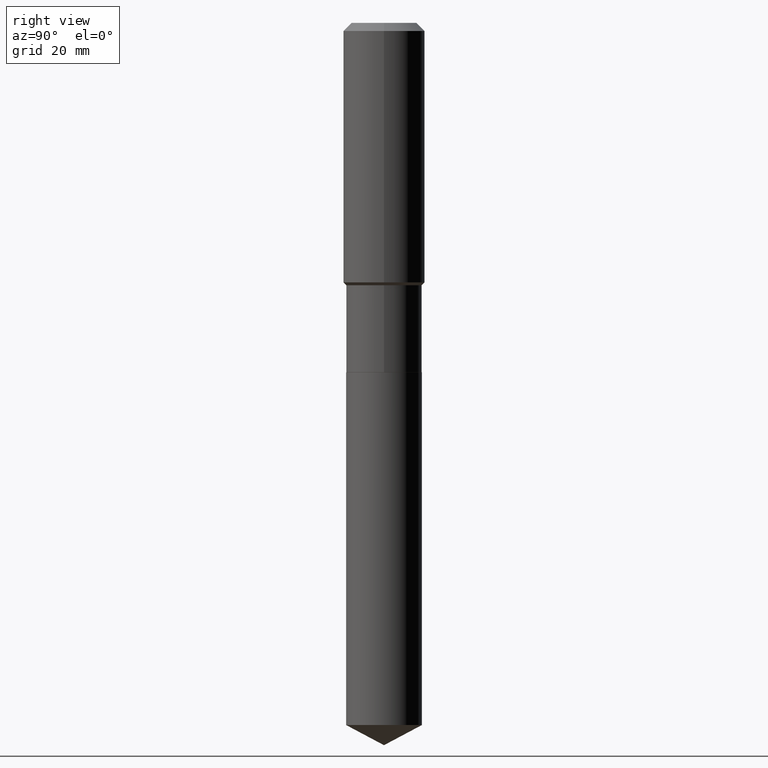
[diagram: clean part render]
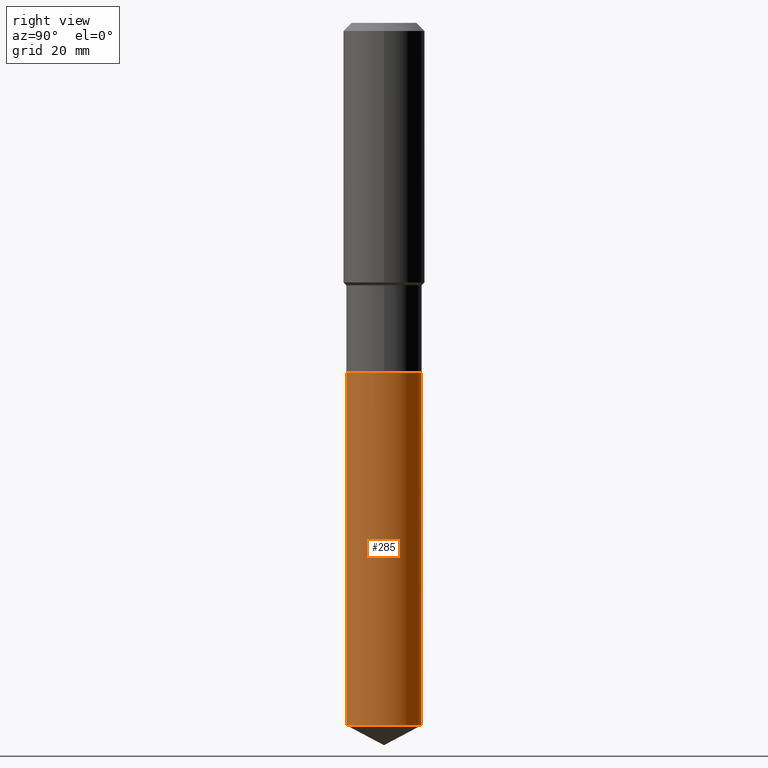
[diagram: same view with one face highlighted and labeled with its STEP entity id]
A machine part, right view. The second image highlights one B-rep face of the part: STEP entity #285.
In plain terms, the highlighted cylindrical surface (partial cylindrical patch) has radius 6.4999 mm, axis along (-0, 0, 1).
Its self-contained STEP definition (entity closure, byte-faithful):
#5 = DIRECTION ( 'NONE',  ( -2.445241835066597652E-29, 3.491806374403287168E-15, 1.000000000000000000 ) ) ;
#6 = EDGE_CURVE ( 'NONE', #428, #277, #374, .T. ) ;
#8 = CARTESIAN_POINT ( 'NONE',  ( 1.818278860810212454E-15, 0.2558999999999917452, -2.362200000000000522 ) ) ;
#9 = VERTEX_POINT ( 'NONE', #406 ) ;
#24 = ORIENTED_EDGE ( 'NONE', *, *, #257, .T. ) ;
#31 = CARTESIAN_POINT ( 'NONE',  ( -1.786940149219857758E-15, -0.2559000000000082875, -2.362199999999998745 ) ) ;
#35 = DIRECTION ( 'NONE',  ( -2.445241835066597932E-29, 3.491806374403287563E-15, 1.000000000000000000 ) ) ;
#36 = AXIS2_PLACEMENT_3D ( 'NONE', #340, #5, #263 ) ;
#37 = VECTOR ( 'NONE', #177, 39.37007874015748143 ) ;
#45 = CARTESIAN_POINT ( 'NONE',  ( 5.776686413970529753E-29, -8.247577218615278049E-15, -2.362199999999999633 ) ) ;
#51 = CIRCLE ( 'NONE', #189, 0.2559000000000000163 ) ;
#60 = CIRCLE ( 'NONE', #36, 0.2559000000000000163 ) ;
#68 = VECTOR ( 'NONE', #35, 39.37007874015748143 ) ;
#117 = DIRECTION ( 'NONE',  ( -2.445241835066597652E-29, 3.491806374403287168E-15, 1.000000000000000000 ) ) ;
#136 = LINE ( 'NONE', #31, #37 ) ;
#146 = CARTESIAN_POINT ( 'NONE',  ( 1.818278860810154079E-15, 0.2558999999999917452, -2.362200000000000522 ) ) ;
#152 = DIRECTION ( 'NONE',  ( -6.982962677686266711E-15, -1.000000000000000000, 3.202635397027271900E-15 ) ) ;
#177 = DIRECTION ( 'NONE',  ( -2.445241835066597932E-29, 3.491806374403287563E-15, 1.000000000000000000 ) ) ;
#189 = AXIS2_PLACEMENT_3D ( 'NONE', #267, #341, #488 ) ;
#191 = EDGE_CURVE ( 'NONE', #9, #277, #60, .T. ) ;
#257 = EDGE_CURVE ( 'NONE', #358, #428, #51, .T. ) ;
#263 = DIRECTION ( 'NONE',  ( -6.982962677686266711E-15, -1.000000000000000000, 3.202635397027271900E-15 ) ) ;
#267 = CARTESIAN_POINT ( 'NONE',  ( 1.160525179612455455E-28, -1.657077104883921077E-14, -4.745835556437827840 ) ) ;
#277 = VERTEX_POINT ( 'NONE', #8 ) ;
#285 = ADVANCED_FACE ( 'NONE', ( #424 ), #454, .T. ) ;
#340 = CARTESIAN_POINT ( 'NONE',  ( 5.776686413970529753E-29, -8.247577218615278049E-15, -2.362199999999999633 ) ) ;
#341 = DIRECTION ( 'NONE',  ( -2.445241835066597652E-29, 3.491806374403287168E-15, 1.000000000000000000 ) ) ;
#349 = CARTESIAN_POINT ( 'NONE',  ( -1.786940149219799777E-15, -0.2559000000000166142, -4.745835556437826952 ) ) ;
#358 = VERTEX_POINT ( 'NONE', #349 ) ;
#374 = LINE ( 'NONE', #146, #68 ) ;
#397 = CARTESIAN_POINT ( 'NONE',  ( 1.818278860810212454E-15, 0.2558999999999834740, -4.745835556437828728 ) ) ;
#406 = CARTESIAN_POINT ( 'NONE',  ( -1.786940149219857758E-15, -0.2559000000000082875, -2.362199999999998745 ) ) ;
#424 = FACE_OUTER_BOUND ( 'NONE', #432, .T. ) ;
#428 = VERTEX_POINT ( 'NONE', #397 ) ;
#432 = EDGE_LOOP ( 'NONE', ( #24, #468, #434, #485 ) ) ;
#434 = ORIENTED_EDGE ( 'NONE', *, *, #191, .F. ) ;
#454 = CYLINDRICAL_SURFACE ( 'NONE', #455, 0.2559000000000000163 ) ;
#455 = AXIS2_PLACEMENT_3D ( 'NONE', #45, #117, #152 ) ;
#468 = ORIENTED_EDGE ( 'NONE', *, *, #6, .T. ) ;
#485 = ORIENTED_EDGE ( 'NONE', *, *, #489, .F. ) ;
#488 = DIRECTION ( 'NONE',  ( -6.982962677686266711E-15, -1.000000000000000000, 4.270180529369696392E-15 ) ) ;
#489 = EDGE_CURVE ( 'NONE', #358, #9, #136, .T. ) ;